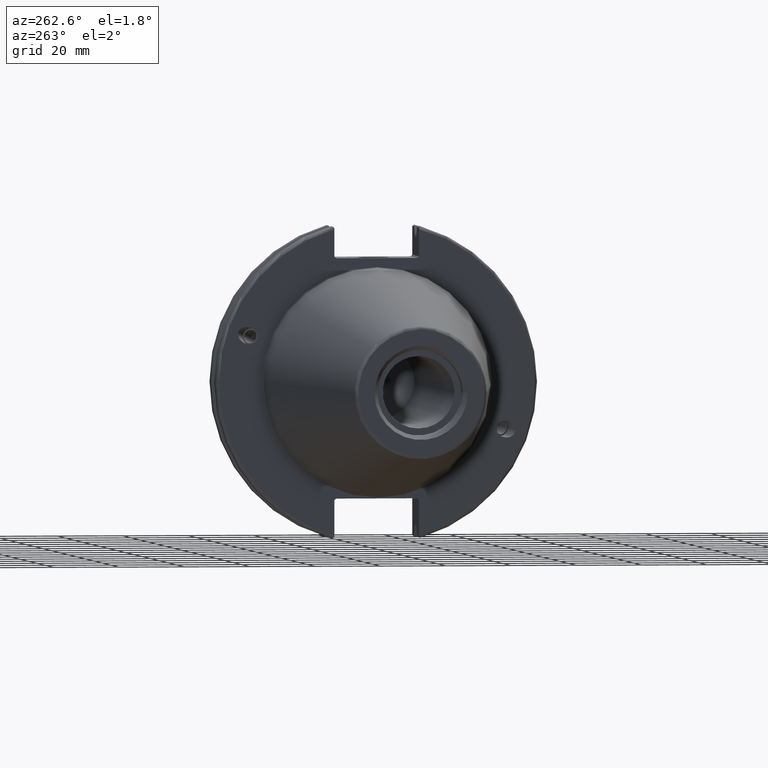
[diagram: clean part render]
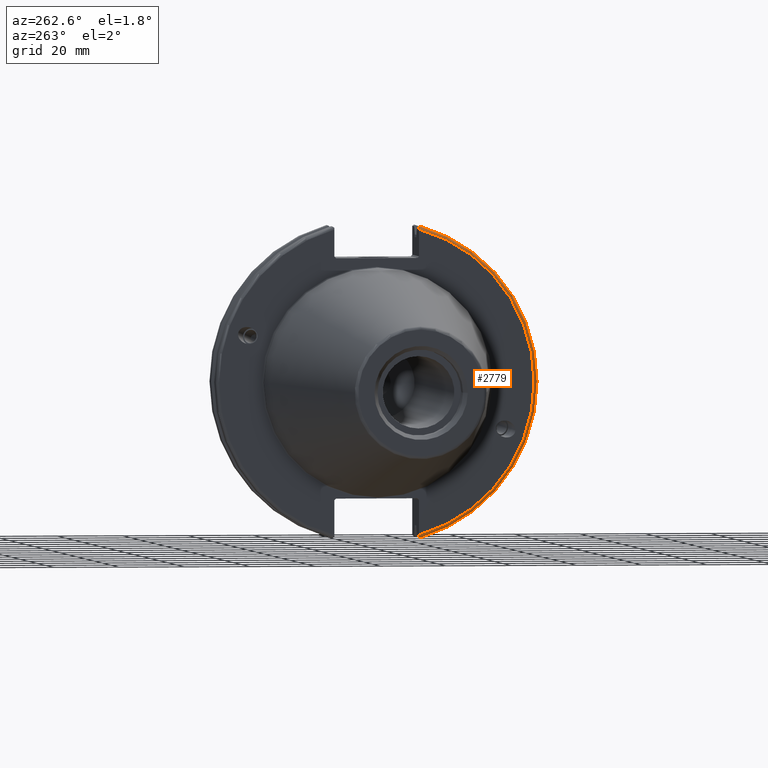
[diagram: same view with one face highlighted and labeled with its STEP entity id]
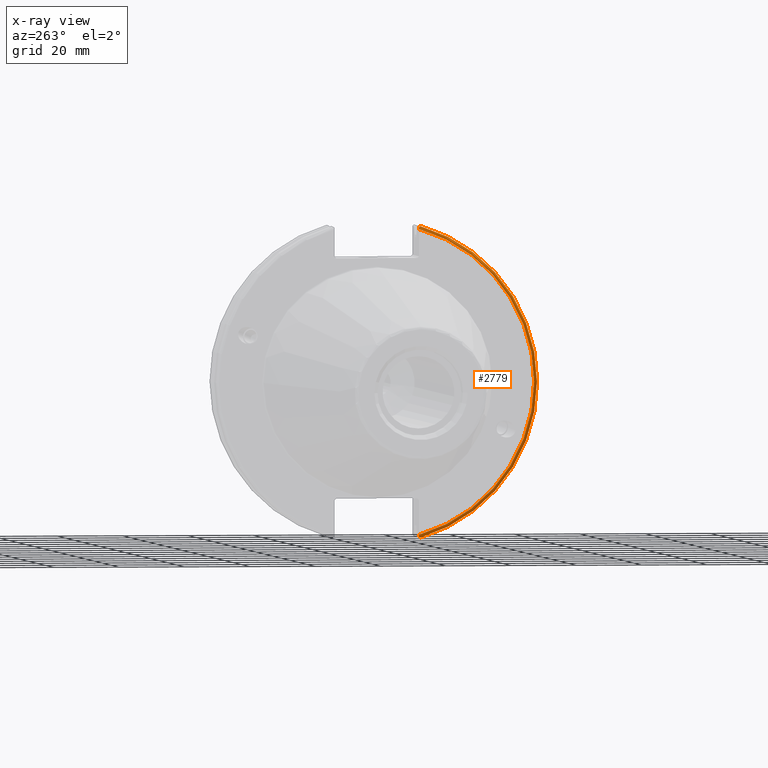
[diagram: x-ray of the same camera — body ghosted, the highlighted face saturated]
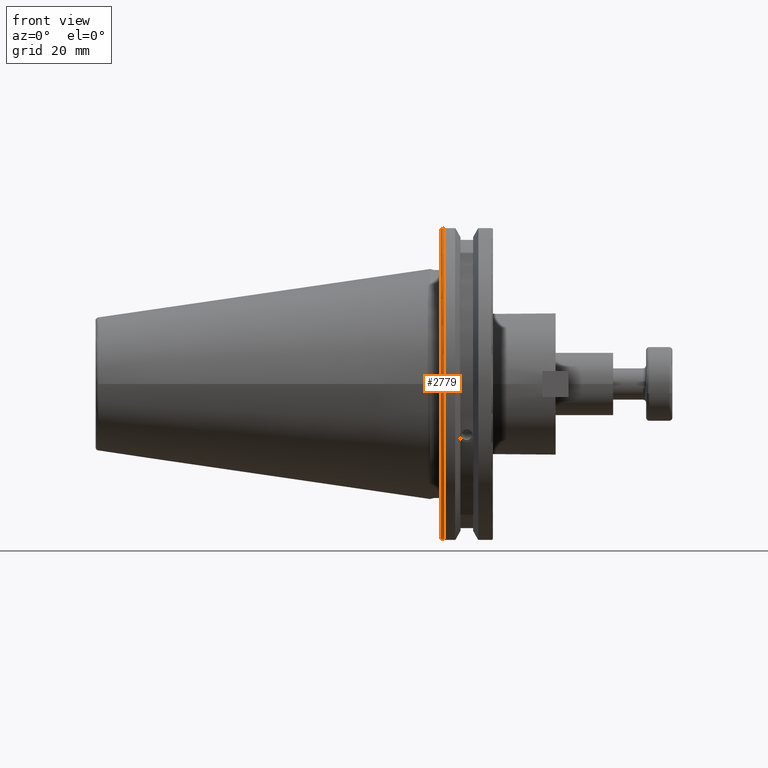
[diagram: same view with one face highlighted and labeled with its STEP entity id]
A machine part, auxiliary view. The second image highlights one B-rep face of the part: STEP entity #2779.
The next image is the same camera in x-ray: the body ghosted, the highlighted face saturated — about 0% of this face is hidden behind the body in this view.
A second angle (front view) of the same face is appended — the face is thin or edge-on in the first view.
In plain terms, the highlighted toroidal blend (fillet) surface has major radius 48.2125 mm and minor (blend) radius 1 mm.
Its self-contained STEP definition (entity closure, byte-faithful):
#449=TOROIDAL_SURFACE('',#3139,48.2125,1.);
#504=B_SPLINE_CURVE_WITH_KNOTS('',3,(#4828,#4829,#4830,#4831,#4832,#4833),
 .UNSPECIFIED.,.F.,.F.,(4,2,4),(0.0976892167532858,0.112000071948292,0.150881870548587),
 .UNSPECIFIED.);
#511=B_SPLINE_CURVE_WITH_KNOTS('',3,(#4938,#4939,#4940,#4941,#4942,#4943,
#4944,#4945),.UNSPECIFIED.,.F.,.F.,(4,2,2,4),(-0.104075769062722,-0.0730268503455485,
-0.034363987365627,0.),.UNSPECIFIED.);
#512=B_SPLINE_CURVE_WITH_KNOTS('',3,(#4948,#4949,#4950,#4951,#4952,#4953,
#4954,#4955),.UNSPECIFIED.,.F.,.F.,(4,2,2,4),(0.,0.0343639873656262,0.073026850345548,
0.104075769062723),.UNSPECIFIED.);
#513=B_SPLINE_CURVE_WITH_KNOTS('',3,(#4956,#4957,#4958,#4959,#4960,#4961),
 .UNSPECIFIED.,.F.,.F.,(4,2,4),(0.452859340315922,0.491741138916218,0.506051994111223),
 .UNSPECIFIED.);
#651=CIRCLE('',#3124,48.2125);
#658=CIRCLE('',#3140,49.2125);
#791=FACE_OUTER_BOUND('',#949,.T.);
#949=EDGE_LOOP('',(#2272,#2273,#2274,#2275,#2276,#2277));
#1477=VERTEX_POINT('',#4755);
#1478=VERTEX_POINT('',#4756);
#1497=VERTEX_POINT('',#4827);
#1522=VERTEX_POINT('',#4936);
#1523=VERTEX_POINT('',#4937);
#1524=VERTEX_POINT('',#4946);
#1744=EDGE_CURVE('',#1477,#1478,#651,.T.);
#1768=EDGE_CURVE('',#1497,#1477,#504,.T.);
#1802=EDGE_CURVE('',#1522,#1523,#511,.T.);
#1803=EDGE_CURVE('',#1523,#1524,#658,.T.);
#1804=EDGE_CURVE('',#1524,#1497,#512,.T.);
#1805=EDGE_CURVE('',#1478,#1522,#513,.T.);
#2272=ORIENTED_EDGE('',*,*,#1802,.T.);
#2273=ORIENTED_EDGE('',*,*,#1803,.T.);
#2274=ORIENTED_EDGE('',*,*,#1804,.T.);
#2275=ORIENTED_EDGE('',*,*,#1768,.T.);
#2276=ORIENTED_EDGE('',*,*,#1744,.T.);
#2277=ORIENTED_EDGE('',*,*,#1805,.T.);
#2779=ADVANCED_FACE('',(#791),#449,.T.);
#3124=AXIS2_PLACEMENT_3D('',#4757,#3613,#3614);
#3139=AXIS2_PLACEMENT_3D('',#4935,#3680,#3681);
#3140=AXIS2_PLACEMENT_3D('',#4947,#3682,#3683);
#3613=DIRECTION('center_axis',(1.,0.,0.));
#3614=DIRECTION('ref_axis',(0.,-1.,1.60812264967664E-16));
#3680=DIRECTION('center_axis',(1.,0.,0.));
#3681=DIRECTION('ref_axis',(0.,0.,-1.));
#3682=DIRECTION('center_axis',(-1.,0.,0.));
#3683=DIRECTION('ref_axis',(0.,-1.,1.60812264967664E-16));
#4755=CARTESIAN_POINT('',(3.175,-12.95,46.4407434937254));
#4756=CARTESIAN_POINT('',(3.175,-12.95,-46.4407434937254));
#4757=CARTESIAN_POINT('Origin',(3.175,0.,0.));
#4827=CARTESIAN_POINT('',(3.31949794294344,-12.95,46.9780755322918));
#4828=CARTESIAN_POINT('Ctrl Pts',(3.31949794294344,-12.95,46.9780755322918));
#4829=CARTESIAN_POINT('Ctrl Pts',(3.29341556483839,-12.95,46.9333752207329));
#4830=CARTESIAN_POINT('Ctrl Pts',(3.27115672912336,-12.95,46.887363294568));
#4831=CARTESIAN_POINT('Ctrl Pts',(3.20453530071253,-12.95,46.7230464903732));
#4832=CARTESIAN_POINT('Ctrl Pts',(3.175,-12.95,46.5703494890597));
#4833=CARTESIAN_POINT('Ctrl Pts',(3.175,-12.95,46.4407434937254));
#4935=CARTESIAN_POINT('Origin',(4.175,0.,0.));
#4936=CARTESIAN_POINT('',(3.31949794294343,-12.95,-46.9780755322917));
#4937=CARTESIAN_POINT('',(4.175,-13.4317035994433,-47.3440544806494));
#4938=CARTESIAN_POINT('Ctrl Pts',(3.31949794294343,-12.95,-46.9780755322917));
#4939=CARTESIAN_POINT('Ctrl Pts',(3.36785032278753,-13.0300321736484,-47.0388807469102));
#4940=CARTESIAN_POINT('Ctrl Pts',(3.43235971798504,-13.1083611826073,-47.0983919657547));
#4941=CARTESIAN_POINT('Ctrl Pts',(3.58507512107923,-13.2478194810696,-47.2043467509586));
#4942=CARTESIAN_POINT('Ctrl Pts',(3.70638116490964,-13.3242014686233,-47.2623787015413));
#4943=CARTESIAN_POINT('Ctrl Pts',(3.92661103245834,-13.4067722493645,-47.3251126473446));
#4944=CARTESIAN_POINT('Ctrl Pts',(4.06045337544791,-13.4317035994434,-47.3440544806494));
#4945=CARTESIAN_POINT('Ctrl Pts',(4.175,-13.4317035994434,-47.3440544806494));
#4946=CARTESIAN_POINT('',(4.175,-13.4317035994433,47.3440544806494));
#4947=CARTESIAN_POINT('Origin',(4.175,0.,0.));
#4948=CARTESIAN_POINT('Ctrl Pts',(4.175,-13.4317035994433,47.3440544806494));
#4949=CARTESIAN_POINT('Ctrl Pts',(4.06045337544791,-13.4317035994433,47.3440544806494));
#4950=CARTESIAN_POINT('Ctrl Pts',(3.92661103245835,-13.4067722493645,47.3251126473446));
#4951=CARTESIAN_POINT('Ctrl Pts',(3.70638116490965,-13.3242014686233,47.2623787015413));
#4952=CARTESIAN_POINT('Ctrl Pts',(3.58507512107923,-13.2478194810695,47.2043467509586));
#4953=CARTESIAN_POINT('Ctrl Pts',(3.43235971798504,-13.1083611826073,47.0983919657547));
#4954=CARTESIAN_POINT('Ctrl Pts',(3.36785032278754,-13.0300321736484,47.0388807469102));
#4955=CARTESIAN_POINT('Ctrl Pts',(3.31949794294344,-12.95,46.9780755322918));
#4956=CARTESIAN_POINT('Ctrl Pts',(3.175,-12.95,-46.4407434937254));
#4957=CARTESIAN_POINT('Ctrl Pts',(3.175,-12.95,-46.5703494890597));
#4958=CARTESIAN_POINT('Ctrl Pts',(3.20453530071253,-12.95,-46.7230464903732));
#4959=CARTESIAN_POINT('Ctrl Pts',(3.27115672912336,-12.95,-46.887363294568));
#4960=CARTESIAN_POINT('Ctrl Pts',(3.29341556483838,-12.95,-46.9333752207329));
#4961=CARTESIAN_POINT('Ctrl Pts',(3.31949794294343,-12.95,-46.9780755322917));